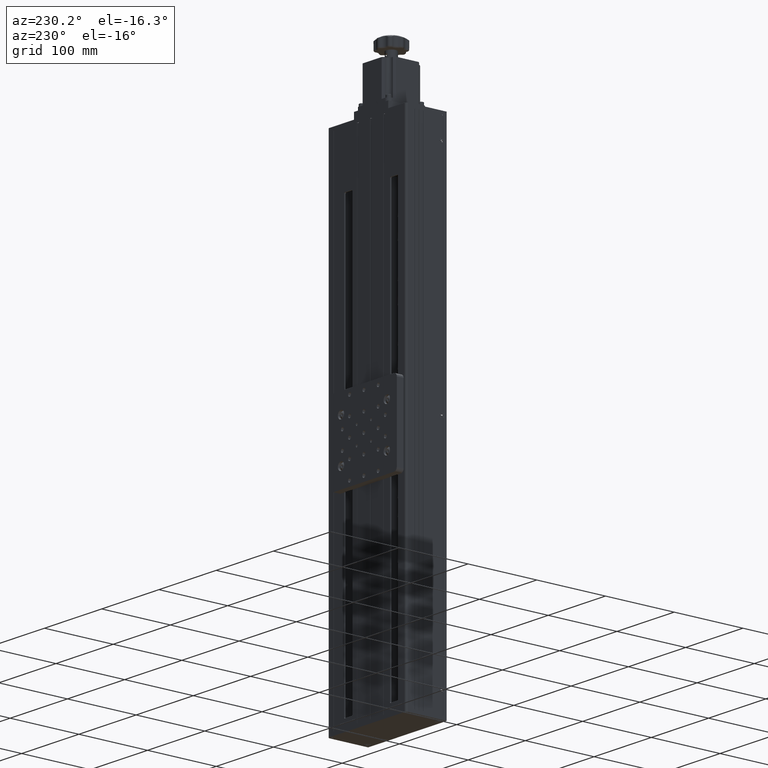
[diagram: clean part render]
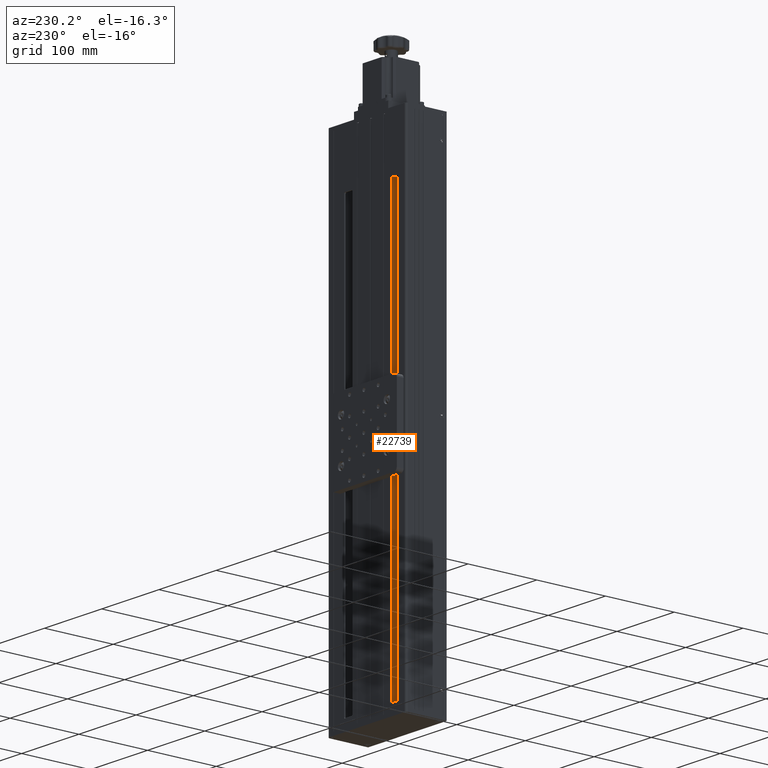
[diagram: same view with one face highlighted and labeled with its STEP entity id]
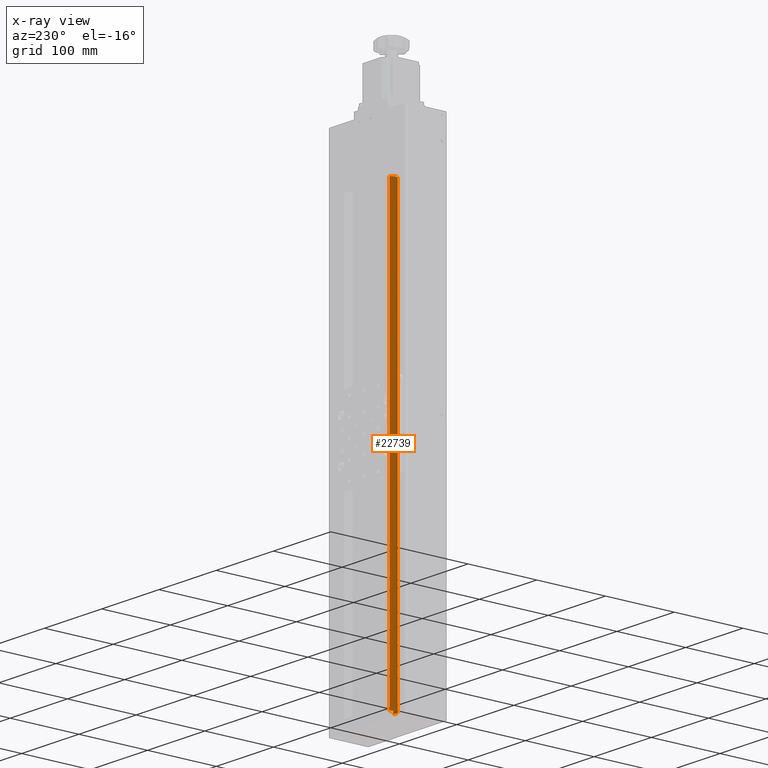
[diagram: x-ray of the same camera — body ghosted, the highlighted face saturated]
A machine part, auxiliary view. The second image highlights one B-rep face of the part: STEP entity #22739.
The next image is the same camera in x-ray: the body ghosted, the highlighted face saturated — about 0% of this face is hidden behind the body in this view.
In plain terms, the highlighted cylindrical surface (edge-blend (fillet) strip) has radius 7 mm, axis along (0, -0, -1).
Its self-contained STEP definition (entity closure, byte-faithful):
#81 = DIRECTION ( 'NONE',  ( 4.733576305429173841E-29, -2.192866807852609787E-16, -1.000000000000000000 ) ) ;
#108 = EDGE_CURVE ( 'NONE', #25747, #14682, #10529, .T. ) ;
#912 = ORIENTED_EDGE ( 'NONE', *, *, #108, .T. ) ;
#1680 = VERTEX_POINT ( 'NONE', #4905 ) ;
#1803 = CARTESIAN_POINT ( 'NONE',  ( -10.61080835603994998, 20.58234937935196740, -336.9999999999999432 ) ) ;
#2389 = ORIENTED_EDGE ( 'NONE', *, *, #29429, .F. ) ;
#3327 = EDGE_CURVE ( 'NONE', #19531, #1680, #12298, .T. ) ;
#3379 = CIRCLE ( 'NONE', #20646, 6.999999999999999112 ) ;
#4032 = CARTESIAN_POINT ( 'NONE',  ( -10.61080835603994110, 20.58234937935195319, -350.0000000000000000 ) ) ;
#4905 = CARTESIAN_POINT ( 'NONE',  ( -6.655679651986665668, 14.80680118594436756, -336.9999999999999432 ) ) ;
#4910 = DIRECTION ( 'NONE',  ( 4.733576305429173841E-29, -2.192866807852609787E-16, -1.000000000000000000 ) ) ;
#5058 = DIRECTION ( 'NONE',  ( 0.5650183862933264578, -0.8250783133439427708, 0.000000000000000000 ) ) ;
#5893 = FACE_OUTER_BOUND ( 'NONE', #25789, .T. ) ;
#6439 = CARTESIAN_POINT ( 'NONE',  ( -6.655679651986656786, 14.80680118594449191, 286.0000000000000568 ) ) ;
#8355 = DIRECTION ( 'NONE',  ( 4.733576305429173841E-29, -2.192866807852609787E-16, -1.000000000000000000 ) ) ;
#8545 = VECTOR ( 'NONE', #81, 1000.000000000000000 ) ;
#8664 = DIRECTION ( 'NONE',  ( 0.5650183862933264578, -0.8250783133439427708, 0.000000000000000000 ) ) ;
#10159 = EDGE_CURVE ( 'NONE', #19531, #25747, #27798, .T. ) ;
#10529 = LINE ( 'NONE', #20254, #13312 ) ;
#11221 = DIRECTION ( 'NONE',  ( 4.733576305429173841E-29, -2.192866807852609787E-16, -1.000000000000000000 ) ) ;
#11840 = CARTESIAN_POINT ( 'NONE',  ( -6.655679651986656786, 14.80680118594435335, -350.0000000000000000 ) ) ;
#12066 = CARTESIAN_POINT ( 'NONE',  ( -14.56593706009320144, 26.35789757275958678, -336.9999999999999432 ) ) ;
#12298 = LINE ( 'NONE', #11840, #8545 ) ;
#13312 = VECTOR ( 'NONE', #17635, 1000.000000000000000 ) ;
#13514 = AXIS2_PLACEMENT_3D ( 'NONE', #26519, #4910, #5058 ) ;
#14682 = VERTEX_POINT ( 'NONE', #12066 ) ;
#17635 = DIRECTION ( 'NONE',  ( 4.733576305429173841E-29, -2.192866807852609787E-16, -1.000000000000000000 ) ) ;
#19531 = VERTEX_POINT ( 'NONE', #6439 ) ;
#19893 = CARTESIAN_POINT ( 'NONE',  ( -14.56593706009325828, 26.35789757275966849, 286.0000000000000568 ) ) ;
#20254 = CARTESIAN_POINT ( 'NONE',  ( -14.56593706009322631, 26.35789757275955125, -350.0000000000000000 ) ) ;
#20646 = AXIS2_PLACEMENT_3D ( 'NONE', #1803, #11221, #30390 ) ;
#22739 = ADVANCED_FACE ( 'NONE', ( #5893 ), #27364, .T. ) ;
#24979 = ORIENTED_EDGE ( 'NONE', *, *, #3327, .F. ) ;
#25747 = VERTEX_POINT ( 'NONE', #19893 ) ;
#25789 = EDGE_LOOP ( 'NONE', ( #29439, #912, #2389, #24979 ) ) ;
#26519 = CARTESIAN_POINT ( 'NONE',  ( -10.61080835603994110, 20.58234937935209174, 286.0000000000000568 ) ) ;
#27364 = CYLINDRICAL_SURFACE ( 'NONE', #30233, 6.999999999999999112 ) ;
#27798 = CIRCLE ( 'NONE', #13514, 6.999999999999999112 ) ;
#29429 = EDGE_CURVE ( 'NONE', #1680, #14682, #3379, .T. ) ;
#29439 = ORIENTED_EDGE ( 'NONE', *, *, #10159, .T. ) ;
#30233 = AXIS2_PLACEMENT_3D ( 'NONE', #4032, #8355, #8664 ) ;
#30390 = DIRECTION ( 'NONE',  ( 0.5650183862933264578, -0.8250783133439427708, 0.000000000000000000 ) ) ;